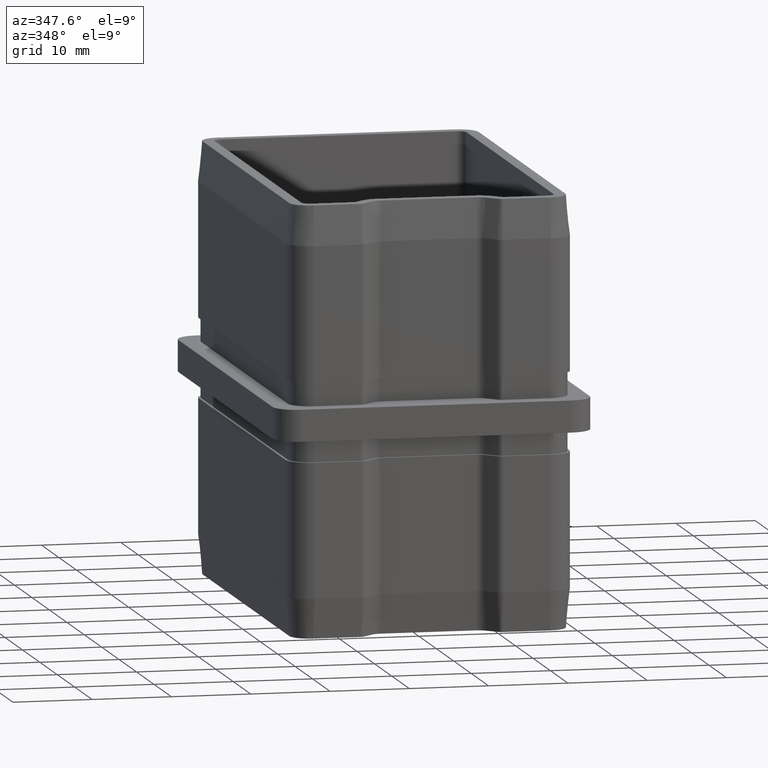
[diagram: clean part render]
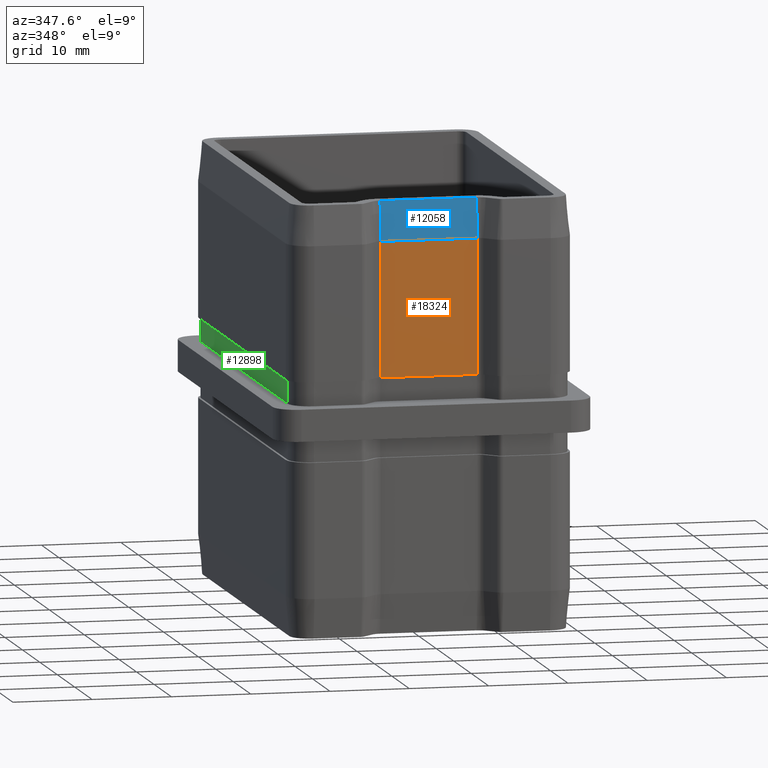
[diagram: same view with three faces highlighted in distinct colors, each labeled with its STEP entity id]
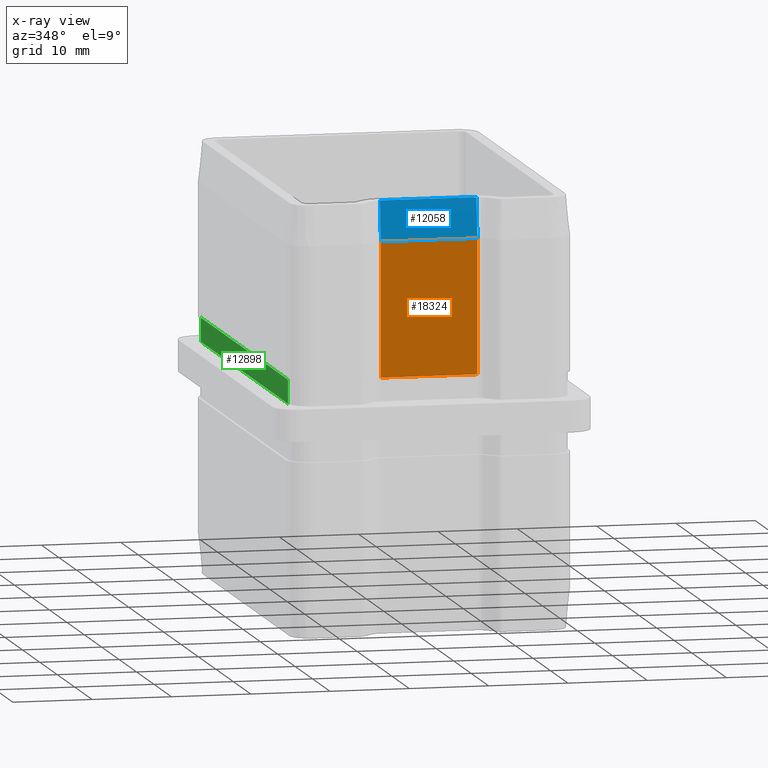
[diagram: x-ray of the same camera — body ghosted, the three highlighted faces saturated]
A machine part, auxiliary view with three faces highlighted in distinct colors.
The next image is the same camera in x-ray (body ghosted, the three faces saturated) — at least one of them is partly hidden behind the body in this view.
Their STEP definitions:

[orange] entity #18324 — the highlighted planar face has unit normal (0, 1, -0).
#513 = VERTEX_POINT ( 'NONE', #18727 ) ;
#767 = CARTESIAN_POINT ( 'NONE',  ( 6.085786437626916600, -25.89999999999998400, 5.000000000000000000 ) ) ;
#895 = ORIENTED_EDGE ( 'NONE', *, *, #12967, .T. ) ;
#1852 = ORIENTED_EDGE ( 'NONE', *, *, #11278, .T. ) ;
#3206 = CARTESIAN_POINT ( 'NONE',  ( 6.085786437626912200, -25.89999999999999500, 27.00000000000000000 ) ) ;
#3436 = EDGE_LOOP ( 'NONE', ( #895, #1852, #8572, #14957 ) ) ;
#5257 = DIRECTION ( 'NONE',  ( -1.000000000000000000, 0.0000000000000000000, 0.0000000000000000000 ) ) ;
#5414 = CARTESIAN_POINT ( 'NONE',  ( 6.085786437626916600, -25.89999999999999100, 22.00000000000000000 ) ) ;
#5734 = PLANE ( 'NONE',  #21485 ) ;
#6421 = DIRECTION ( 'NONE',  ( 0.0000000000000000000, 0.0000000000000000000, -1.000000000000000000 ) ) ;
#7048 = DIRECTION ( 'NONE',  ( -0.0000000000000000000, -0.0000000000000000000, 1.000000000000000000 ) ) ;
#7532 = VERTEX_POINT ( 'NONE', #17954 ) ;
#7867 = CARTESIAN_POINT ( 'NONE',  ( 6.500000000000005300, -25.89999999999999500, 27.00000000000000000 ) ) ;
#8246 = VECTOR ( 'NONE', #7048, 1000.000000000000000 ) ;
#8572 = ORIENTED_EDGE ( 'NONE', *, *, #20300, .T. ) ;
#8743 = FACE_OUTER_BOUND ( 'NONE', #3436, .T. ) ;
#9236 = VECTOR ( 'NONE', #5257, 1000.000000000000000 ) ;
#9824 = LINE ( 'NONE', #767, #19613 ) ;
#10178 = LINE ( 'NONE', #18134, #11413 ) ;
#11278 = EDGE_CURVE ( 'NONE', #17464, #7532, #19637, .T. ) ;
#11413 = VECTOR ( 'NONE', #6421, 1000.000000000000000 ) ;
#11972 = EDGE_CURVE ( 'NONE', #14560, #513, #9824, .T. ) ;
#12967 = EDGE_CURVE ( 'NONE', #14560, #17464, #16512, .T. ) ;
#13429 = DIRECTION ( 'NONE',  ( 0.0000000000000000000, 1.000000000000000000, -0.0000000000000000000 ) ) ;
#14560 = VERTEX_POINT ( 'NONE', #15354 ) ;
#14957 = ORIENTED_EDGE ( 'NONE', *, *, #11972, .F. ) ;
#15354 = CARTESIAN_POINT ( 'NONE',  ( 6.085786437626916600, -25.89999999999998400, 5.000000000000000000 ) ) ;
#16512 = LINE ( 'NONE', #3206, #8246 ) ;
#17464 = VERTEX_POINT ( 'NONE', #21786 ) ;
#17954 = CARTESIAN_POINT ( 'NONE',  ( -6.085786437626902400, -25.89999999999999100, 22.00000000000000000 ) ) ;
#18134 = CARTESIAN_POINT ( 'NONE',  ( -6.085786437626911300, -25.89999999999999500, 1.999999999999998200 ) ) ;
#18324 = ADVANCED_FACE ( 'NONE', ( #8743 ), #5734, .F. ) ;
#18727 = CARTESIAN_POINT ( 'NONE',  ( -6.085786437626902400, -25.89999999999998400, 5.000000000000000000 ) ) ;
#19613 = VECTOR ( 'NONE', #22395, 1000.000000000000000 ) ;
#19637 = LINE ( 'NONE', #5414, #9236 ) ;
#20300 = EDGE_CURVE ( 'NONE', #7532, #513, #10178, .T. ) ;
#21485 = AXIS2_PLACEMENT_3D ( 'NONE', #7867, #13429, #21564 ) ;
#21564 = DIRECTION ( 'NONE',  ( 0.0000000000000000000, 0.0000000000000000000, 1.000000000000000000 ) ) ;
#21786 = CARTESIAN_POINT ( 'NONE',  ( 6.085786437626916600, -25.89999999999999100, 22.00000000000000000 ) ) ;
#22395 = DIRECTION ( 'NONE',  ( -1.000000000000000000, 0.0000000000000000000, 0.0000000000000000000 ) ) ;

[blue] entity #12058 — the highlighted planar face has unit normal (0, 0.995, -0.0995).
#223 = LINE ( 'NONE', #6069, #3278 ) ;
#1240 = EDGE_LOOP ( 'NONE', ( #2200, #18021, #24974, #2068 ) ) ;
#2068 = ORIENTED_EDGE ( 'NONE', *, *, #11278, .F. ) ;
#2200 = ORIENTED_EDGE ( 'NONE', *, *, #13000, .F. ) ;
#2575 = EDGE_CURVE ( 'NONE', #22636, #7532, #17330, .T. ) ;
#2648 = PLANE ( 'NONE',  #15318 ) ;
#3278 = VECTOR ( 'NONE', #23733, 1000.000000000000000 ) ;
#3991 = LINE ( 'NONE', #6962, #24746 ) ;
#4184 = EDGE_CURVE ( 'NONE', #20828, #22636, #223, .T. ) ;
#4873 = DIRECTION ( 'NONE',  ( 0.0000000000000000000, 0.09950371902100041400, 0.9950371902099889300 ) ) ;
#5257 = DIRECTION ( 'NONE',  ( -1.000000000000000000, 0.0000000000000000000, 0.0000000000000000000 ) ) ;
#5414 = CARTESIAN_POINT ( 'NONE',  ( 6.085786437626916600, -25.89999999999999100, 22.00000000000000000 ) ) ;
#6069 = CARTESIAN_POINT ( 'NONE',  ( 6.085786437626916600, -25.39999999999998100, 26.99999999999999600 ) ) ;
#6962 = CARTESIAN_POINT ( 'NONE',  ( 6.085786437626916600, -25.39999999999998100, 26.99999999999999600 ) ) ;
#7365 = FACE_OUTER_BOUND ( 'NONE', #1240, .T. ) ;
#7532 = VERTEX_POINT ( 'NONE', #17954 ) ;
#8863 = DIRECTION ( 'NONE',  ( -6.938893903907228400E-018, -0.09950371902100041400, -0.9950371902099889300 ) ) ;
#9069 = CARTESIAN_POINT ( 'NONE',  ( 6.085786437626916600, -25.39999999999998100, 26.99999999999999600 ) ) ;
#9236 = VECTOR ( 'NONE', #5257, 1000.000000000000000 ) ;
#10955 = DIRECTION ( 'NONE',  ( -6.938893903907228400E-018, -0.09950371902100041400, -0.9950371902099889300 ) ) ;
#11278 = EDGE_CURVE ( 'NONE', #17464, #7532, #19637, .T. ) ;
#12058 = ADVANCED_FACE ( 'NONE', ( #7365 ), #2648, .F. ) ;
#13000 = EDGE_CURVE ( 'NONE', #20828, #17464, #3991, .T. ) ;
#14076 = CARTESIAN_POINT ( 'NONE',  ( -6.085786437626902400, -25.39999999999998100, 26.99999999999999600 ) ) ;
#14601 = DIRECTION ( 'NONE',  ( 0.0000000000000000000, 0.9950371902099890400, -0.09950371902100042800 ) ) ;
#14605 = VECTOR ( 'NONE', #10955, 1000.000000000000200 ) ;
#15318 = AXIS2_PLACEMENT_3D ( 'NONE', #18273, #14601, #4873 ) ;
#16533 = CARTESIAN_POINT ( 'NONE',  ( -6.085786437626902400, -25.39999999999998100, 26.99999999999999600 ) ) ;
#17330 = LINE ( 'NONE', #16533, #14605 ) ;
#17464 = VERTEX_POINT ( 'NONE', #21786 ) ;
#17954 = CARTESIAN_POINT ( 'NONE',  ( -6.085786437626902400, -25.89999999999999100, 22.00000000000000000 ) ) ;
#18021 = ORIENTED_EDGE ( 'NONE', *, *, #4184, .T. ) ;
#18273 = CARTESIAN_POINT ( 'NONE',  ( 6.085786437626916600, -25.39999999999998100, 26.99999999999999600 ) ) ;
#19637 = LINE ( 'NONE', #5414, #9236 ) ;
#20828 = VERTEX_POINT ( 'NONE', #9069 ) ;
#21786 = CARTESIAN_POINT ( 'NONE',  ( 6.085786437626916600, -25.89999999999999100, 22.00000000000000000 ) ) ;
#22636 = VERTEX_POINT ( 'NONE', #14076 ) ;
#23733 = DIRECTION ( 'NONE',  ( -1.000000000000000000, 0.0000000000000000000, 0.0000000000000000000 ) ) ;
#24746 = VECTOR ( 'NONE', #8863, 1000.000000000000200 ) ;
#24974 = ORIENTED_EDGE ( 'NONE', *, *, #2575, .T. ) ;

[green] entity #12898 — the highlighted planar face has unit normal (1, -0, 0).
#619 = VERTEX_POINT ( 'NONE', #4529 ) ;
#1331 = EDGE_CURVE ( 'NONE', #24836, #18648, #2724, .T. ) ;
#1684 = LINE ( 'NONE', #15783, #5357 ) ;
#2101 = VECTOR ( 'NONE', #20512, 1000.000000000000000 ) ;
#2398 = EDGE_LOOP ( 'NONE', ( #17203, #22661, #14247, #10437 ) ) ;
#2711 = CARTESIAN_POINT ( 'NONE',  ( -17.59999999999998000, -24.89999999999999900, 5.000000000000000000 ) ) ;
#2724 = LINE ( 'NONE', #6817, #2101 ) ;
#4529 = CARTESIAN_POINT ( 'NONE',  ( -17.59999999999998000, -24.89999999999999900, 2.000000000000000000 ) ) ;
#4682 = DIRECTION ( 'NONE',  ( 1.000000000000000000, -0.0000000000000000000, 0.0000000000000000000 ) ) ;
#5357 = VECTOR ( 'NONE', #19724, 1000.000000000000000 ) ;
#5935 = EDGE_CURVE ( 'NONE', #24836, #619, #1684, .T. ) ;
#6817 = CARTESIAN_POINT ( 'NONE',  ( -17.59999999999998000, -24.89999999999999900, 5.000000000000000000 ) ) ;
#10106 = LINE ( 'NONE', #16804, #22649 ) ;
#10437 = ORIENTED_EDGE ( 'NONE', *, *, #16343, .F. ) ;
#10453 = CARTESIAN_POINT ( 'NONE',  ( -17.59999999999998000, -24.89999999999999900, 5.000000000000000000 ) ) ;
#11930 = CARTESIAN_POINT ( 'NONE',  ( -17.59999999999998000, -24.89999999999999900, 2.000000000000000000 ) ) ;
#12197 = EDGE_CURVE ( 'NONE', #18648, #22038, #10106, .T. ) ;
#12420 = VECTOR ( 'NONE', #14051, 1000.000000000000000 ) ;
#12898 = ADVANCED_FACE ( 'NONE', ( #15281 ), #14409, .F. ) ;
#14051 = DIRECTION ( 'NONE',  ( 0.0000000000000000000, 1.000000000000000000, 0.0000000000000000000 ) ) ;
#14247 = ORIENTED_EDGE ( 'NONE', *, *, #12197, .T. ) ;
#14409 = PLANE ( 'NONE',  #23827 ) ;
#15281 = FACE_OUTER_BOUND ( 'NONE', #2398, .T. ) ;
#15783 = CARTESIAN_POINT ( 'NONE',  ( -17.59999999999998000, -24.89999999999999900, 5.000000000000000000 ) ) ;
#16343 = EDGE_CURVE ( 'NONE', #619, #22038, #19452, .T. ) ;
#16804 = CARTESIAN_POINT ( 'NONE',  ( -17.59999999999998000, 24.89999999999999100, 5.000000000000000000 ) ) ;
#17203 = ORIENTED_EDGE ( 'NONE', *, *, #5935, .F. ) ;
#17597 = CARTESIAN_POINT ( 'NONE',  ( -17.59999999999998000, 24.89999999999999100, 2.000000000000000000 ) ) ;
#18648 = VERTEX_POINT ( 'NONE', #21532 ) ;
#18781 = DIRECTION ( 'NONE',  ( 0.0000000000000000000, 0.0000000000000000000, -1.000000000000000000 ) ) ;
#19452 = LINE ( 'NONE', #11930, #12420 ) ;
#19724 = DIRECTION ( 'NONE',  ( 0.0000000000000000000, 0.0000000000000000000, -1.000000000000000000 ) ) ;
#20400 = DIRECTION ( 'NONE',  ( 0.0000000000000000000, 0.0000000000000000000, -1.000000000000000000 ) ) ;
#20512 = DIRECTION ( 'NONE',  ( 0.0000000000000000000, 1.000000000000000000, 0.0000000000000000000 ) ) ;
#21532 = CARTESIAN_POINT ( 'NONE',  ( -17.59999999999998000, 24.89999999999999100, 5.000000000000000000 ) ) ;
#22038 = VERTEX_POINT ( 'NONE', #17597 ) ;
#22649 = VECTOR ( 'NONE', #18781, 1000.000000000000000 ) ;
#22661 = ORIENTED_EDGE ( 'NONE', *, *, #1331, .T. ) ;
#23827 = AXIS2_PLACEMENT_3D ( 'NONE', #2711, #4682, #20400 ) ;
#24836 = VERTEX_POINT ( 'NONE', #10453 ) ;